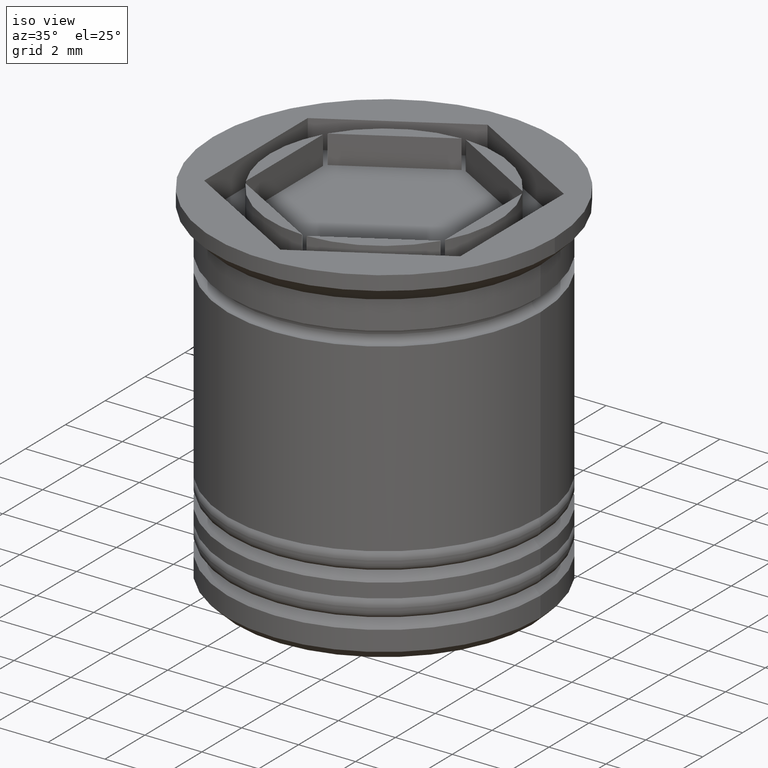
[diagram: clean part render]
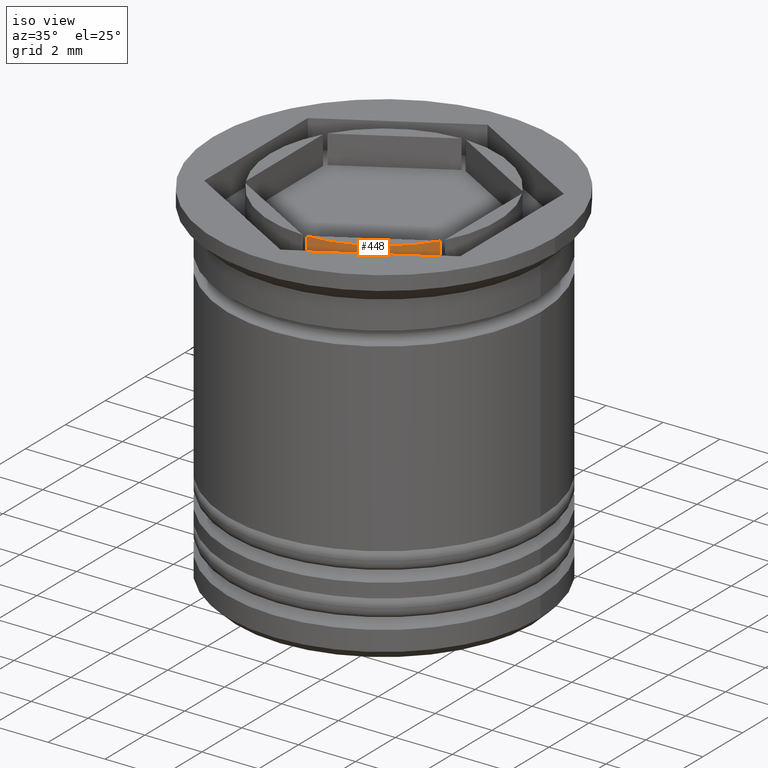
[diagram: same view with one face highlighted and labeled with its STEP entity id]
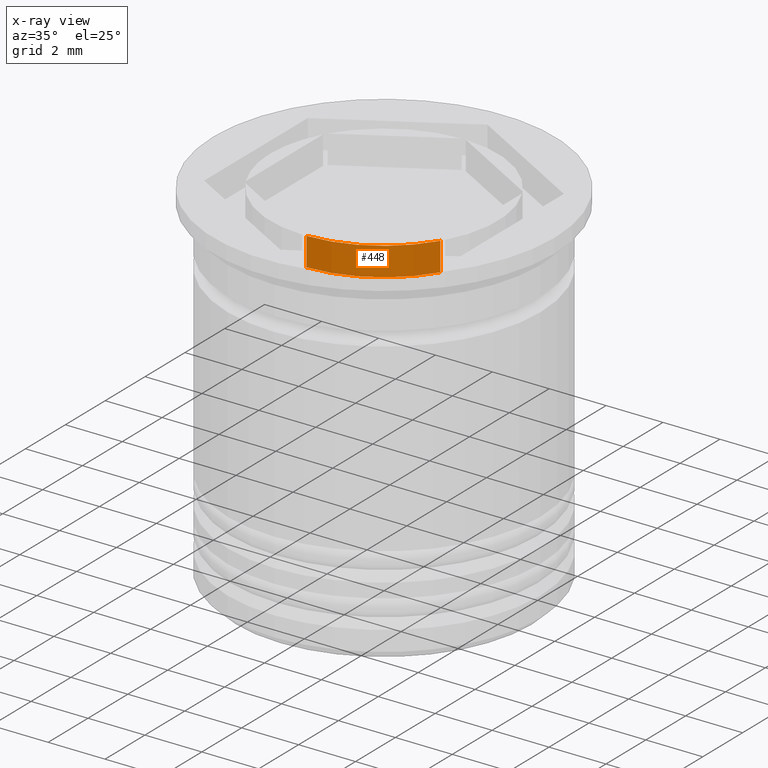
[diagram: x-ray of the same camera — body ghosted, the highlighted face saturated]
A machine part, iso view. The second image highlights one B-rep face of the part: STEP entity #448.
The next image is the same camera in x-ray: the body ghosted, the highlighted face saturated — about 0% of this face is hidden behind the body in this view.
In plain terms, the highlighted cylindrical surface (partial cylindrical patch) has radius 4 mm, axis along (-0, -0, -1).
Its self-contained STEP definition (entity closure, byte-faithful):
#99 = CARTESIAN_POINT ( 'NONE',  ( 0.07294901687515718824, -3.999334749797389232, 11.31370849898475761 ) ) ;
#145 = EDGE_CURVE ( 'NONE', #1050, #1396, #386, .T. ) ;
#168 = ORIENTED_EDGE ( 'NONE', *, *, #478, .T. ) ;
#236 = DIRECTION ( 'NONE',  ( -0.000000000000000000, -0.000000000000000000, -1.000000000000000000 ) ) ;
#246 = VERTEX_POINT ( 'NONE', #1519 ) ;
#282 = DIRECTION ( 'NONE',  ( -0.000000000000000000, -0.000000000000000000, 1.000000000000000000 ) ) ;
#362 = DIRECTION ( 'NONE',  ( -1.000000000000000000, 0.000000000000000000, 0.000000000000000000 ) ) ;
#386 = LINE ( 'NONE', #99, #1558 ) ;
#394 = DIRECTION ( 'NONE',  ( -0.000000000000000000, -0.000000000000000000, -1.000000000000000000 ) ) ;
#399 = CARTESIAN_POINT ( 'NONE',  ( 3.427050983124842354, -2.062843076693679834, 11.31370849898475761 ) ) ;
#448 = ADVANCED_FACE ( 'NONE', ( #1440 ), #503, .T. ) ;
#478 = EDGE_CURVE ( 'NONE', #1396, #1193, #1655, .T. ) ;
#503 = CYLINDRICAL_SURFACE ( 'NONE', #906, 4.000000000000000000 ) ;
#581 = DIRECTION ( 'NONE',  ( 0.000000000000000000, 0.000000000000000000, 1.000000000000000000 ) ) ;
#673 = CARTESIAN_POINT ( 'NONE',  ( 0.07294901687515892297, -3.999334749797390121, -1.000000000000000888 ) ) ;
#825 = DIRECTION ( 'NONE',  ( 0.000000000000000000, 0.000000000000000000, 1.000000000000000000 ) ) ;
#906 = AXIS2_PLACEMENT_3D ( 'NONE', #1113, #394, #362 ) ;
#921 = CARTESIAN_POINT ( 'NONE',  ( 3.427050983124842354, -2.062843076693682498, -1.000000000000000888 ) ) ;
#966 = ORIENTED_EDGE ( 'NONE', *, *, #1038, .F. ) ;
#1005 = DIRECTION ( 'NONE',  ( 1.000000000000000000, 0.000000000000000000, 0.000000000000000000 ) ) ;
#1038 = EDGE_CURVE ( 'NONE', #1050, #246, #1209, .T. ) ;
#1039 = AXIS2_PLACEMENT_3D ( 'NONE', #1323, #282, #1194 ) ;
#1050 = VERTEX_POINT ( 'NONE', #1787 ) ;
#1053 = EDGE_LOOP ( 'NONE', ( #966, #1479, #168, #1989 ) ) ;
#1113 = CARTESIAN_POINT ( 'NONE',  ( 0.000000000000000000, 0.000000000000000000, 11.31370849898475761 ) ) ;
#1140 = CARTESIAN_POINT ( 'NONE',  ( 0.000000000000000000, 0.000000000000000000, -1.000000000000000000 ) ) ;
#1193 = VERTEX_POINT ( 'NONE', #921 ) ;
#1194 = DIRECTION ( 'NONE',  ( 1.000000000000000000, 0.000000000000000000, 0.000000000000000000 ) ) ;
#1209 = CIRCLE ( 'NONE', #1039, 4.000000000000000000 ) ;
#1323 = CARTESIAN_POINT ( 'NONE',  ( 0.000000000000000000, 0.000000000000000000, 0.000000000000000000 ) ) ;
#1396 = VERTEX_POINT ( 'NONE', #673 ) ;
#1440 = FACE_OUTER_BOUND ( 'NONE', #1053, .T. ) ;
#1455 = AXIS2_PLACEMENT_3D ( 'NONE', #1140, #825, #1005 ) ;
#1465 = VECTOR ( 'NONE', #581, 1000.000000000000000 ) ;
#1479 = ORIENTED_EDGE ( 'NONE', *, *, #145, .T. ) ;
#1519 = CARTESIAN_POINT ( 'NONE',  ( 3.427050983124840133, -2.062843076693681610, 0.000000000000000000 ) ) ;
#1558 = VECTOR ( 'NONE', #236, 1000.000000000000000 ) ;
#1655 = CIRCLE ( 'NONE', #1455, 4.000000000000000000 ) ;
#1681 = EDGE_CURVE ( 'NONE', #1193, #246, #1912, .T. ) ;
#1787 = CARTESIAN_POINT ( 'NONE',  ( 0.07294901687515815969, -3.999334749797389232, 0.000000000000000000 ) ) ;
#1912 = LINE ( 'NONE', #399, #1465 ) ;
#1989 = ORIENTED_EDGE ( 'NONE', *, *, #1681, .T. ) ;